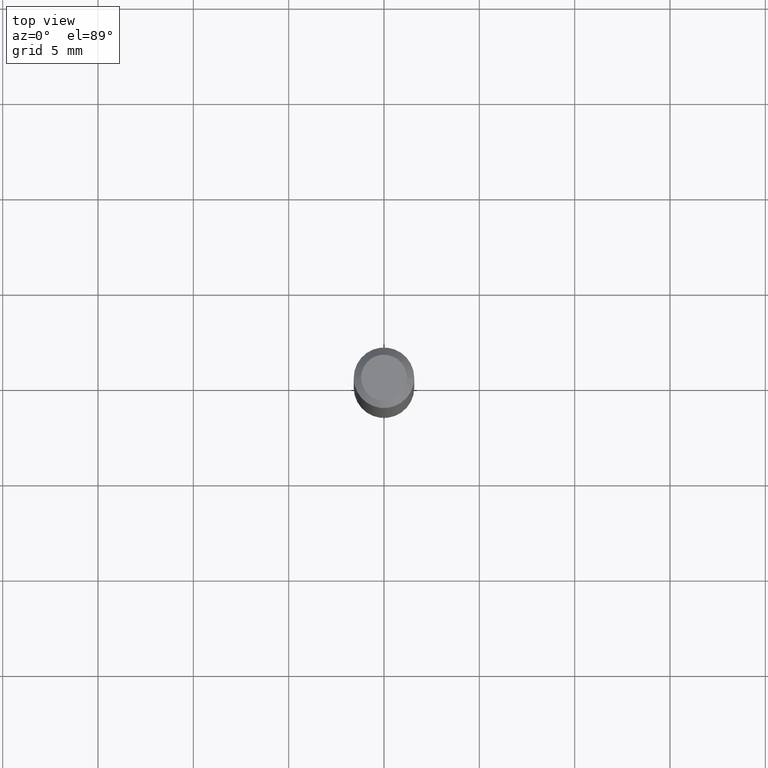
[diagram: clean part render]
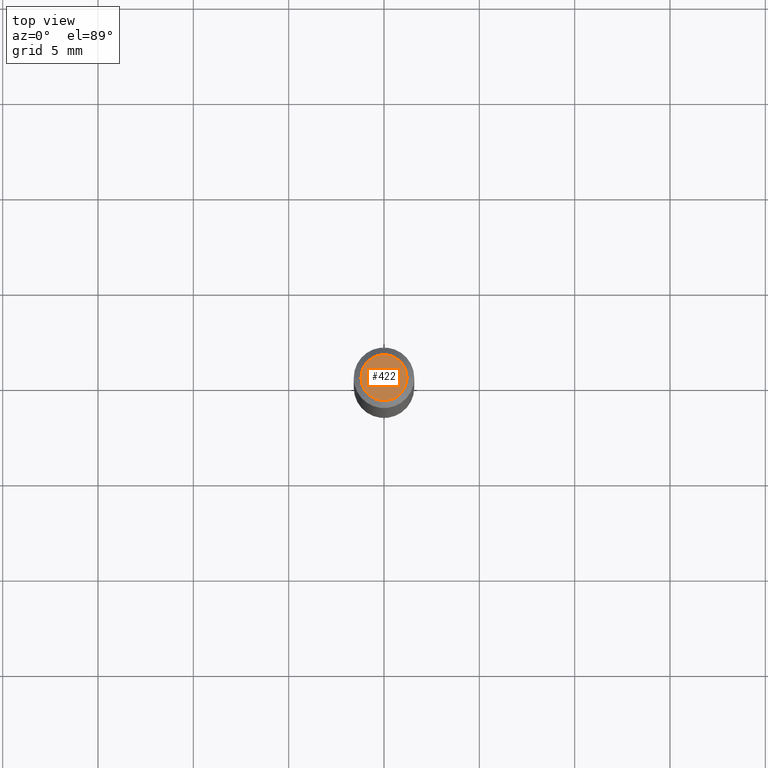
[diagram: same view with one face highlighted and labeled with its STEP entity id]
A machine part, top view. The second image highlights one B-rep face of the part: STEP entity #422.
In plain terms, the highlighted planar face has unit normal (0, -0, -1).
Its self-contained STEP definition (entity closure, byte-faithful):
#1 = DIRECTION ( 'NONE',  ( -2.445468806185136597E-29, 3.491481338843145583E-15, 1.000000000000000000 ) ) ;
#12 = EDGE_CURVE ( 'NONE', #109, #408, #93, .T. ) ;
#24 = PLANE ( 'NONE',  #119 ) ;
#38 = EDGE_CURVE ( 'NONE', #408, #109, #418, .T. ) ;
#42 = DIRECTION ( 'NONE',  ( 1.000000000000000000, -6.982962677686267499E-15, 4.852736867747366768E-29 ) ) ;
#45 = AXIS2_PLACEMENT_3D ( 'NONE', #219, #1, #363 ) ;
#58 = DIRECTION ( 'NONE',  ( -1.000000000000000000, 6.982962677686265922E-15, -4.876176775795935793E-29 ) ) ;
#59 = ORIENTED_EDGE ( 'NONE', *, *, #12, .T. ) ;
#93 = CIRCLE ( 'NONE', #45, 0.04749999999999999362 ) ;
#109 = VERTEX_POINT ( 'NONE', #399 ) ;
#117 = CARTESIAN_POINT ( 'NONE',  ( 3.316907271900976096E-16, 0.04749999999999999362, -2.904368096790510281E-16 ) ) ;
#119 = AXIS2_PLACEMENT_3D ( 'NONE', #117, #380, #58 ) ;
#145 = ORIENTED_EDGE ( 'NONE', *, *, #38, .T. ) ;
#194 = CARTESIAN_POINT ( 'NONE',  ( 0.04749999999999999362, -4.035134999187582567E-16, -2.491828921680006996E-16 ) ) ;
#219 = CARTESIAN_POINT ( 'NONE',  ( 6.093689898318465335E-45, -8.700174179635472181E-31, -2.491828921680032634E-16 ) ) ;
#309 = EDGE_LOOP ( 'NONE', ( #59, #145 ) ) ;
#313 = FACE_OUTER_BOUND ( 'NONE', #309, .T. ) ;
#363 = DIRECTION ( 'NONE',  ( 1.000000000000000000, -6.982962677686267499E-15, 4.852736867747366768E-29 ) ) ;
#372 = DIRECTION ( 'NONE',  ( -2.445468806185136597E-29, 3.491481338843145583E-15, 1.000000000000000000 ) ) ;
#380 = DIRECTION ( 'NONE',  ( 2.438088387897960049E-29, -3.491481338843145188E-15, -1.000000000000000000 ) ) ;
#399 = CARTESIAN_POINT ( 'NONE',  ( -0.04749999999999999362, 3.578768372314206562E-16, -2.491828921680056300E-16 ) ) ;
#408 = VERTEX_POINT ( 'NONE', #194 ) ;
#418 = CIRCLE ( 'NONE', #438, 0.04749999999999999362 ) ;
#422 = ADVANCED_FACE ( 'NONE', ( #313 ), #24, .F. ) ;
#434 = CARTESIAN_POINT ( 'NONE',  ( 6.093689898318465335E-45, -8.700174179635472181E-31, -2.491828921680032634E-16 ) ) ;
#438 = AXIS2_PLACEMENT_3D ( 'NONE', #434, #372, #42 ) ;